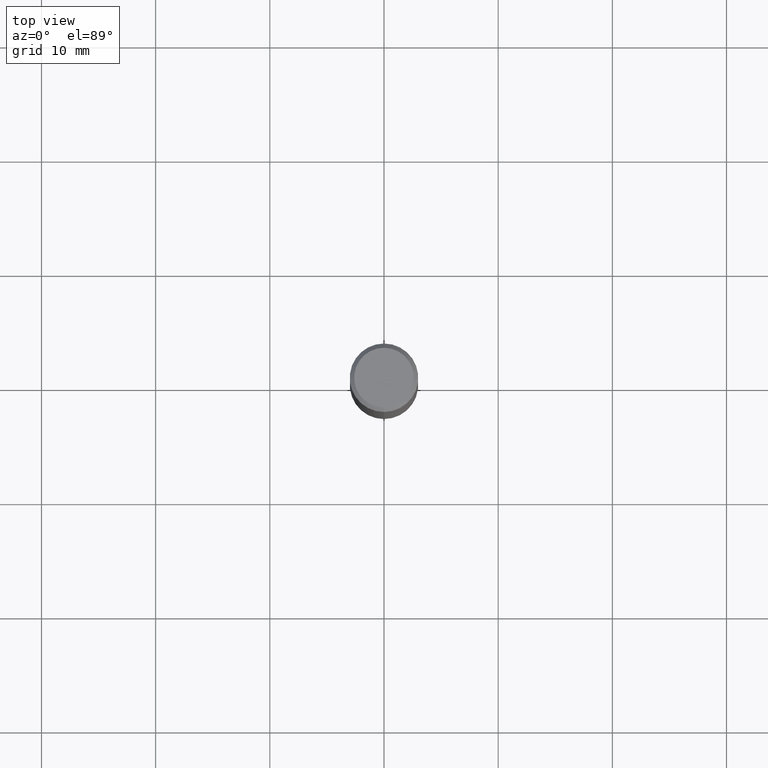
[diagram: clean part render]
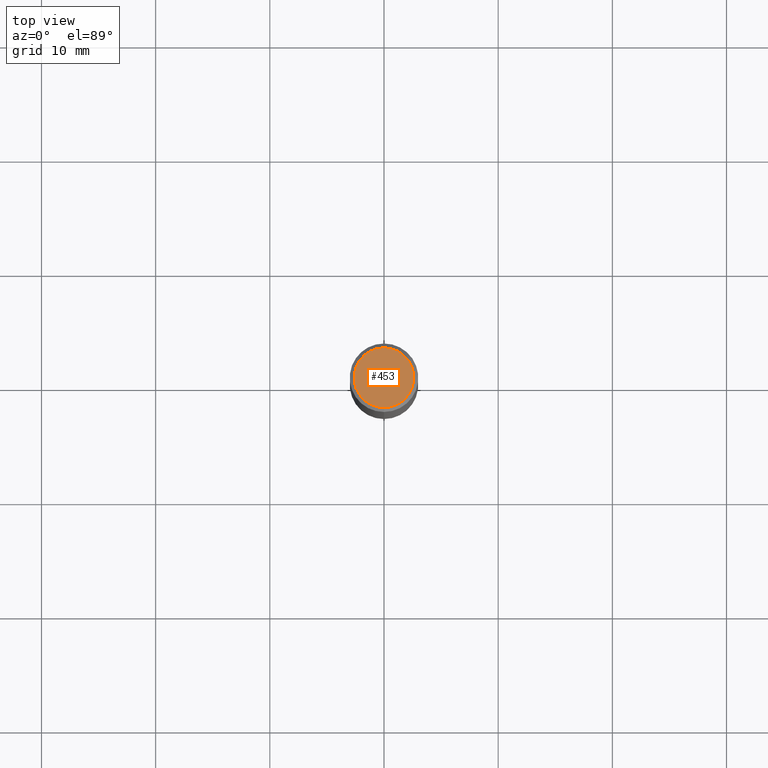
[diagram: same view with one face highlighted and labeled with its STEP entity id]
A machine part, top view. The second image highlights one B-rep face of the part: STEP entity #453.
In plain terms, the highlighted planar face has unit normal (0, -0, -1).
Its self-contained STEP definition (entity closure, byte-faithful):
#3 = CARTESIAN_POINT ( 'NONE',  ( 7.031006082703593828E-46, -1.004986571345311282E-31, -2.876753408151994532E-17 ) ) ;
#5 = EDGE_CURVE ( 'NONE', #390, #466, #58, .T. ) ;
#23 = AXIS2_PLACEMENT_3D ( 'NONE', #3, #179, #520 ) ;
#31 = CARTESIAN_POINT ( 'NONE',  ( -7.587710785535310407E-16, -0.1031000000000000111, 3.312158576516512539E-16 ) ) ;
#58 = CIRCLE ( 'NONE', #491, 0.1031000000000000111 ) ;
#75 = FACE_OUTER_BOUND ( 'NONE', #272, .T. ) ;
#79 = CARTESIAN_POINT ( 'NONE',  ( 7.031006082703593828E-46, -1.004986571345311282E-31, -2.876753408151994532E-17 ) ) ;
#107 = CIRCLE ( 'NONE', #23, 0.1031000000000000111 ) ;
#108 = EDGE_CURVE ( 'NONE', #466, #390, #107, .T. ) ;
#123 = CARTESIAN_POINT ( 'NONE',  ( 7.199434520694541042E-16, 0.1031000000000000111, -1.353304593283080756E-16 ) ) ;
#179 = DIRECTION ( 'NONE',  ( -2.445389794413230210E-29, 3.491594488197586527E-15, 1.000000000000000000 ) ) ;
#242 = DIRECTION ( 'NONE',  ( 6.982962677686265922E-15, 1.000000000000000000, -3.491594488197586133E-15 ) ) ;
#272 = EDGE_LOOP ( 'NONE', ( #282, #284 ) ) ;
#282 = ORIENTED_EDGE ( 'NONE', *, *, #108, .T. ) ;
#284 = ORIENTED_EDGE ( 'NONE', *, *, #5, .T. ) ;
#384 = CARTESIAN_POINT ( 'NONE',  ( 7.723156721521011834E-16, 0.1031000000000000111, -3.887509258146911569E-16 ) ) ;
#390 = VERTEX_POINT ( 'NONE', #31 ) ;
#394 = DIRECTION ( 'NONE',  ( -2.445389794413230210E-29, 3.491594488197586527E-15, 1.000000000000000000 ) ) ;
#426 = PLANE ( 'NONE',  #541 ) ;
#453 = ADVANCED_FACE ( 'NONE', ( #75 ), #426, .F. ) ;
#466 = VERTEX_POINT ( 'NONE', #384 ) ;
#480 = DIRECTION ( 'NONE',  ( -6.982962677686265922E-15, -1.000000000000000000, 3.491594488197586527E-15 ) ) ;
#491 = AXIS2_PLACEMENT_3D ( 'NONE', #79, #394, #480 ) ;
#514 = DIRECTION ( 'NONE',  ( 2.445389794413229930E-29, -3.491594488197586133E-15, -1.000000000000000000 ) ) ;
#520 = DIRECTION ( 'NONE',  ( -6.982962677686265922E-15, -1.000000000000000000, 3.491594488197586527E-15 ) ) ;
#541 = AXIS2_PLACEMENT_3D ( 'NONE', #123, #514, #242 ) ;